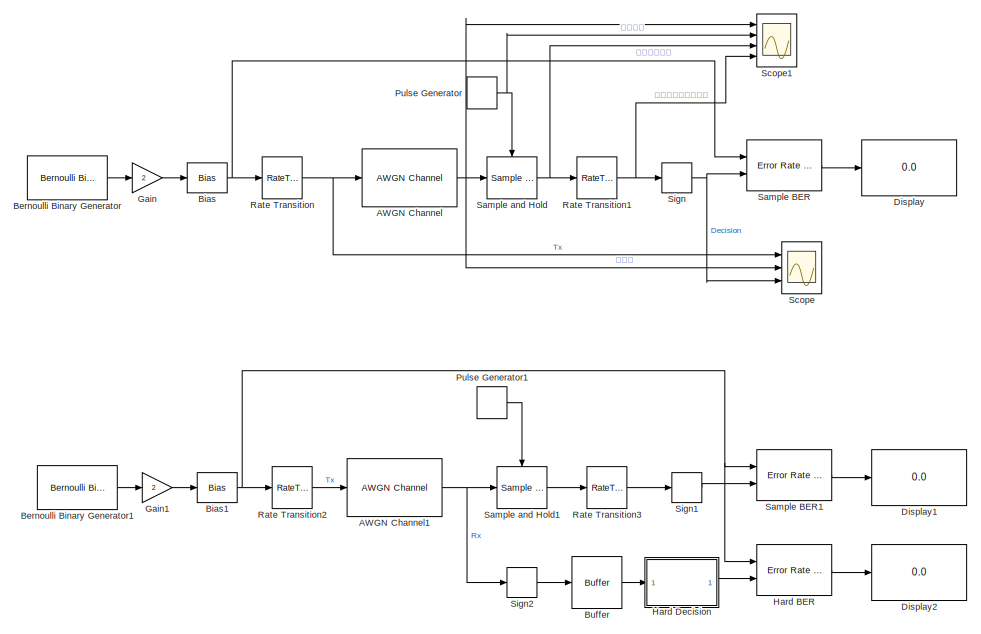
[diagram: root canvas - part 1/2, full width, top band]
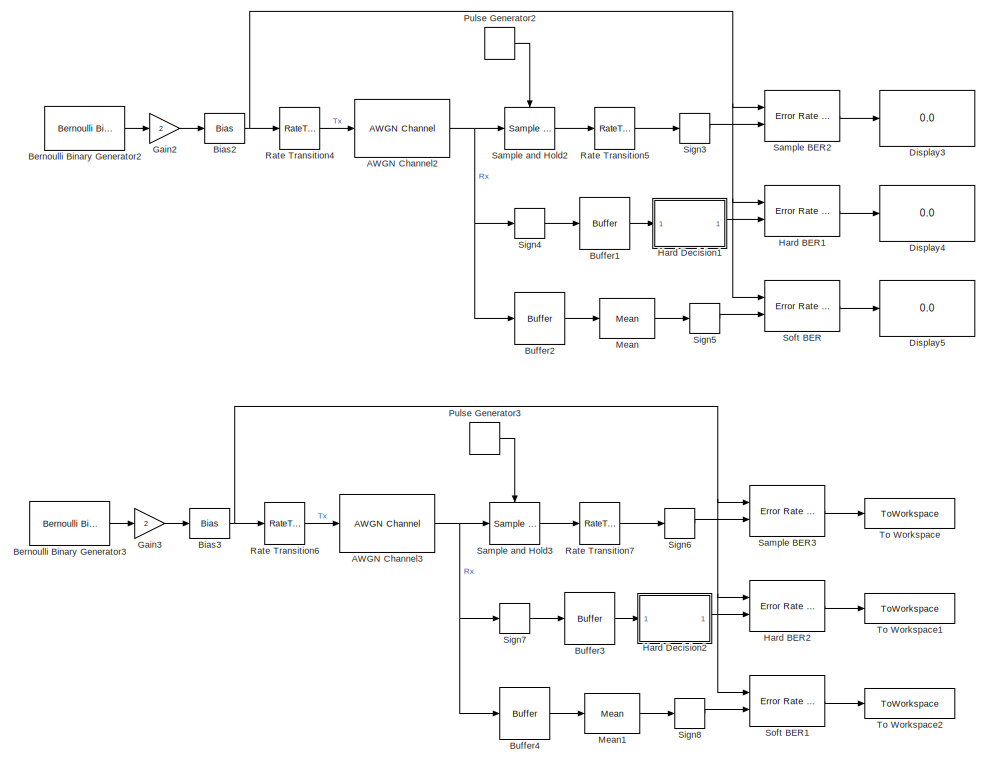
[diagram: root canvas - part 2/2, full width, bottom band]
MODEL slx_f33b62472613
KIND model
CONFIG AbsTol = auto
CONFIG EnableMultiTasking = off
CONFIG FixedStep = auto
CONFIG MaxStep = auto
CONFIG MinStep = auto
CONFIG RelTol = 1e-3
CONFIG SampleTimeConstraint = Unconstrained
CONFIG SolverName = VariableStepAuto
CONFIG StartTime = 0.0
CONFIG StopTime = 10000
BLOCK [Reference] AWGN Channel  REF=commchan3/AWGN
Channel
  Ports = [1, 1]
  SourceBlock = commchan3/AWGN\nChannel
  SourceProductBaseCode = CM
  SourceType = AWGN Channel
  UserDataPersistent = on
BLOCK [Reference] AWGN Channel1  REF=commchan3/AWGN
Channel
  Ports = [1, 1]
  SourceBlock = commchan3/AWGN\nChannel
  SourceProductBaseCode = CM
  SourceType = AWGN Channel
  UserDataPersistent = on
BLOCK [Reference] AWGN Channel2  REF=commchan3/AWGN
Channel
  Ports = [1, 1]
  SourceBlock = commchan3/AWGN\nChannel
  SourceProductBaseCode = CM
  SourceType = AWGN Channel
  UserDataPersistent = on
BLOCK [Reference] AWGN Channel3  REF=commchan3/AWGN
Channel
  Ports = [1, 1]
  SourceBlock = commchan3/AWGN\nChannel
  SourceProductBaseCode = CM
  SourceType = AWGN Channel
  UserDataPersistent = on
BLOCK [Reference] Bernoulli Binary Generator  REF=commrandsrc3/Bernoulli Binary
Generator
  Ports = [0, 1]
  SourceBlock = commrandsrc3/Bernoulli Binary\nGenerator
  SourceProductBaseCode = CM
  SourceType = Bernoulli Binary Generator
BLOCK [Reference] Bernoulli Binary Generator1  REF=commrandsrc3/Bernoulli Binary
Generator
  Ports = [0, 1]
  SourceBlock = commrandsrc3/Bernoulli Binary\nGenerator
  SourceProductBaseCode = CM
  SourceType = Bernoulli Binary Generator
BLOCK [Reference] Bernoulli Binary Generator2  REF=commrandsrc3/Bernoulli Binary
Generator
  Ports = [0, 1]
  SourceBlock = commrandsrc3/Bernoulli Binary\nGenerator
  SourceProductBaseCode = CM
  SourceType = Bernoulli Binary Generator
BLOCK [Reference] Bernoulli Binary Generator3  REF=commrandsrc3/Bernoulli Binary
Generator
  Ports = [0, 1]
  SourceBlock = commrandsrc3/Bernoulli Binary\nGenerator
  SourceProductBaseCode = CM
  SourceType = Bernoulli Binary Generator
BLOCK [Bias] Bias
  Bias = -1
  SaturateOnIntegerOverflow = off
BLOCK [Bias] Bias1
  Bias = -1
  SaturateOnIntegerOverflow = off
BLOCK [Bias] Bias2
  Bias = -1
  SaturateOnIntegerOverflow = off
BLOCK [Bias] Bias3
  Bias = -1
  SaturateOnIntegerOverflow = off
BLOCK [Buffer] Buffer
  N = Ns
  OutputFrames = off
BLOCK [Buffer] Buffer1
  N = Ns
  OutputFrames = off
BLOCK [Buffer] Buffer2
  N = Ns
  OutputFrames = off
BLOCK [Buffer] Buffer3
  N = Ns
  OutputFrames = off
BLOCK [Buffer] Buffer4
  N = Ns
  OutputFrames = off
BLOCK [Display] Display
  Decimation = 1
  Ports = [1]
BLOCK [Display] Display1
  Decimation = 1
  Ports = [1]
BLOCK [Display] Display2
  Decimation = 1
  Ports = [1]
BLOCK [Display] Display3
  Decimation = 1
  Ports = [1]
BLOCK [Display] Display4
  Decimation = 1
  Ports = [1]
BLOCK [Display] Display5
  Decimation = 1
  Ports = [1]
BLOCK [Gain] Gain
  Gain = 2
BLOCK [Gain] Gain1
  Gain = 2
BLOCK [Gain] Gain2
  Gain = 2
BLOCK [Gain] Gain3
  Gain = 2
BLOCK [Reference] Hard BER  REF=commsink2/Error Rate
Calculation
  Ports = [2, 1]
  SourceBlock = commsink2/Error Rate\nCalculation
  SourceProductBaseCode = CM
  SourceType = Error Rate Calculation
BLOCK [Reference] Hard BER1  REF=commsink2/Error Rate
Calculation
  Ports = [2, 1]
  SourceBlock = commsink2/Error Rate\nCalculation
  SourceProductBaseCode = CM
  SourceType = Error Rate Calculation
BLOCK [Reference] Hard BER2  REF=commsink2/Error Rate
Calculation
  Ports = [2, 1]
  SourceBlock = commsink2/Error Rate\nCalculation
  SourceProductBaseCode = CM
  SourceType = Error Rate Calculation
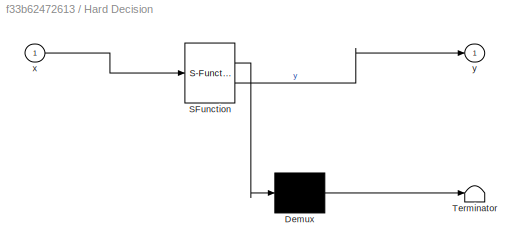
BLOCK [SubSystem] Hard Decision
  ErrorFcn = Stateflow.Translate.translate
  PermitHierarchicalResolution = ExplicitOnly
  Ports = [1, 1]
  RequestExecContextInheritance = off
  SFBlockType = MATLAB Function
  TreatAsAtomicUnit = on
BLOCK [Demux] Hard Decision/ Demux 
  Outputs = 1
  Ports = [1, 1]
BLOCK [S-Function] Hard Decision/ SFunction 
  EnableBusSupport = on
  FunctionName = sf_sfun
  PortCounts = [1 2]
  Ports = [1, 2]
  SFcnIsStateOwnerBlock = off
  SFunctionDeploymentMode = off
  Tag = Stateflow S-Function 2
BLOCK [Terminator] Hard Decision/ Terminator 
BLOCK [Inport] Hard Decision/x
BLOCK [Outport] Hard Decision/y
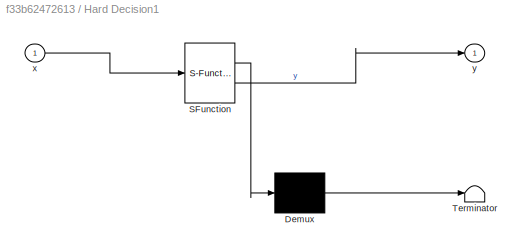
BLOCK [SubSystem] Hard Decision1
  ErrorFcn = Stateflow.Translate.translate
  PermitHierarchicalResolution = ExplicitOnly
  Ports = [1, 1]
  RequestExecContextInheritance = off
  SFBlockType = MATLAB Function
  TreatAsAtomicUnit = on
BLOCK [Demux] Hard Decision1/ Demux 
  Outputs = 1
  Ports = [1, 1]
BLOCK [S-Function] Hard Decision1/ SFunction 
  EnableBusSupport = on
  FunctionName = sf_sfun
  PortCounts = [1 2]
  Ports = [1, 2]
  SFcnIsStateOwnerBlock = off
  SFunctionDeploymentMode = off
  Tag = Stateflow S-Function 1
BLOCK [Terminator] Hard Decision1/ Terminator 
BLOCK [Inport] Hard Decision1/x
BLOCK [Outport] Hard Decision1/y
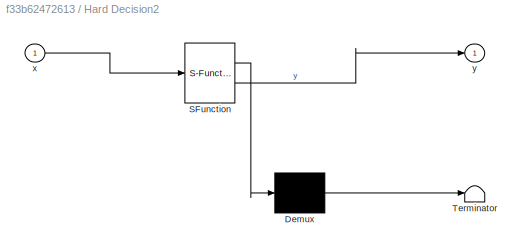
BLOCK [SubSystem] Hard Decision2
  ErrorFcn = Stateflow.Translate.translate
  PermitHierarchicalResolution = ExplicitOnly
  Ports = [1, 1]
  RequestExecContextInheritance = off
  SFBlockType = MATLAB Function
  TreatAsAtomicUnit = on
BLOCK [Demux] Hard Decision2/ Demux 
  Outputs = 1
  Ports = [1, 1]
BLOCK [S-Function] Hard Decision2/ SFunction 
  EnableBusSupport = on
  FunctionName = sf_sfun
  PortCounts = [1 2]
  Ports = [1, 2]
  SFcnIsStateOwnerBlock = off
  SFunctionDeploymentMode = off
  Tag = Stateflow S-Function 3
BLOCK [Terminator] Hard Decision2/ Terminator 
BLOCK [Inport] Hard Decision2/x
BLOCK [Outport] Hard Decision2/y
BLOCK [Reference] Mean  REF=dspstat3/Mean
  Ports = [1, 1]
  SourceBlock = dspstat3/Mean
  SourceProductBaseCode = DS
  SourceType = Mean
  UserDataPersistent = on
BLOCK [Reference] Mean1  REF=dspstat3/Mean
  Ports = [1, 1]
  SourceBlock = dspstat3/Mean
  SourceProductBaseCode = DS
  SourceType = Mean
  UserDataPersistent = on
BLOCK [DiscretePulseGenerator] Pulse Generator
  Period = Ns
  PhaseDelay = 5
  Ports = [0, 1]
  SampleTime = 1/Ns
BLOCK [DiscretePulseGenerator] Pulse Generator1
  Period = Ns
  Ports = [0, 1]
  SampleTime = 1/Ns
BLOCK [DiscretePulseGenerator] Pulse Generator2
  Period = Ns
  Ports = [0, 1]
  SampleTime = 1/Ns
BLOCK [DiscretePulseGenerator] Pulse Generator3
  Period = Ns
  Ports = [0, 1]
  SampleTime = 1/Ns
BLOCK [RateTransition] Rate Transition
  Integrity = off
  OutPortSampleTimeMultiple = 1/Ns
  OutPortSampleTimeOpt = Multiple of input port sample time
BLOCK [RateTransition] Rate Transition1
  OutPortSampleTimeMultiple = Ns
  OutPortSampleTimeOpt = Multiple of input port sample time
BLOCK [RateTransition] Rate Transition2
  Integrity = off
  OutPortSampleTimeMultiple = 1/Ns
  OutPortSampleTimeOpt = Multiple of input port sample time
BLOCK [RateTransition] Rate Transition3
  OutPortSampleTimeMultiple = Ns
  OutPortSampleTimeOpt = Multiple of input port sample time
BLOCK [RateTransition] Rate Transition4
  Integrity = off
  OutPortSampleTimeMultiple = 1/Ns
  OutPortSampleTimeOpt = Multiple of input port sample time
BLOCK [RateTransition] Rate Transition5
  OutPortSampleTimeMultiple = Ns
  OutPortSampleTimeOpt = Multiple of input port sample time
BLOCK [RateTransition] Rate Transition6
  Integrity = off
  OutPortSampleTimeMultiple = 1/Ns
  OutPortSampleTimeOpt = Multiple of input port sample time
BLOCK [RateTransition] Rate Transition7
  OutPortSampleTimeMultiple = Ns
  OutPortSampleTimeOpt = Multiple of input port sample time
BLOCK [Reference] Sample BER  REF=commsink2/Error Rate
Calculation
  Ports = [2, 1]
  SourceBlock = commsink2/Error Rate\nCalculation
  SourceProductBaseCode = CM
  SourceType = Error Rate Calculation
BLOCK [Reference] Sample BER1  REF=commsink2/Error Rate
Calculation
  Ports = [2, 1]
  SourceBlock = commsink2/Error Rate\nCalculation
  SourceProductBaseCode = CM
  SourceType = Error Rate Calculation
BLOCK [Reference] Sample BER2  REF=commsink2/Error Rate
Calculation
  Ports = [2, 1]
  SourceBlock = commsink2/Error Rate\nCalculation
  SourceProductBaseCode = CM
  SourceType = Error Rate Calculation
BLOCK [Reference] Sample BER3  REF=commsink2/Error Rate
Calculation
  Ports = [2, 1]
  SourceBlock = commsink2/Error Rate\nCalculation
  SourceProductBaseCode = CM
  SourceType = Error Rate Calculation
BLOCK [Reference] Sample and Hold  REF=dspsigops/Sample
and Hold
  Ports = [1, 1, 0, 1]
  SourceBlock = dspsigops/Sample\nand Hold
  SourceProductBaseCode = DS
  SourceType = Sample and Hold
BLOCK [Reference] Sample and Hold1  REF=dspsigops/Sample
and Hold
  Ports = [1, 1, 0, 1]
  SourceBlock = dspsigops/Sample\nand Hold
  SourceProductBaseCode = DS
  SourceType = Sample and Hold
BLOCK [Reference] Sample and Hold2  REF=dspsigops/Sample
and Hold
  Ports = [1, 1, 0, 1]
  SourceBlock = dspsigops/Sample\nand Hold
  SourceProductBaseCode = DS
  SourceType = Sample and Hold
BLOCK [Reference] Sample and Hold3  REF=dspsigops/Sample
and Hold
  Ports = [1, 1, 0, 1]
  SourceBlock = dspsigops/Sample\nand Hold
  SourceProductBaseCode = DS
  SourceType = Sample and Hold
BLOCK [Scope] Scope
  Floating = off
  NumInputPorts = 3
  Ports = [3]
  ScopeSpecificationString = Simulink.scopes.TimeScopeBlockCfg('CurrentConfiguration', extmgr.ConfigurationSet(extmgr.Configuration('Core','General UI',true),extmgr.Configuration('Core','Source UI',true),extmgr.Configuration('Sources','WiredSimulink',true),extmgr.Configuration('Visuals','Time Domain',true,'SerializedDisplays',{struct('MinYLimReal','-1.25','MaxYLimReal','1.25','YLabelReal','','MinYLimMag','0.00000','MaxYLimMag...<+2709ch>
BLOCK [Scope] Scope1
  Floating = off
  NumInputPorts = 4
  Ports = [4]
  ScopeSpecificationString = Simulink.scopes.TimeScopeBlockCfg('CurrentConfiguration', extmgr.ConfigurationSet(extmgr.Configuration('Core','General UI',true),extmgr.Configuration('Core','Source UI',true),extmgr.Configuration('Sources','WiredSimulink',true,'DataLoggingVariableName','ScopeData1'),extmgr.Configuration('Visuals','Time Domain',true,'SerializedDisplays',{struct('MinYLimReal','-4.20515','MaxYLimReal','3.84791','YLab...<+3484ch>
BLOCK [Signum] Sign
BLOCK [Signum] Sign1
BLOCK [Signum] Sign2
BLOCK [Signum] Sign3
BLOCK [Signum] Sign4
BLOCK [Signum] Sign5
BLOCK [Signum] Sign6
BLOCK [Signum] Sign7
BLOCK [Signum] Sign8
BLOCK [Reference] Soft BER  REF=commsink2/Error Rate
Calculation
  Ports = [2, 1]
  SourceBlock = commsink2/Error Rate\nCalculation
  SourceProductBaseCode = CM
  SourceType = Error Rate Calculation
BLOCK [Reference] Soft BER1  REF=commsink2/Error Rate
Calculation
  Ports = [2, 1]
  SourceBlock = commsink2/Error Rate\nCalculation
  SourceProductBaseCode = CM
  SourceType = Error Rate Calculation
BLOCK [ToWorkspace] To Workspace
  FixptAsFi = on
  MaxDataPoints = 1
  Ports = [1]
  SampleTime = -1
  VariableName = ber_sample
BLOCK [ToWorkspace] To Workspace1
  FixptAsFi = on
  MaxDataPoints = 1
  Ports = [1]
  SampleTime = -1
  VariableName = ber_hard
BLOCK [ToWorkspace] To Workspace2
  FixptAsFi = on
  MaxDataPoints = 1
  Ports = [1]
  SampleTime = -1
  VariableName = ber_soft
NET AWGN Channel1:1 -> Sample and Hold1:1, Sign2:1
NET AWGN Channel2:1 -> Buffer2:1, Sample and Hold2:1, Sign4:1
NET AWGN Channel3:1 -> Buffer4:1, Sample and Hold3:1, Sign7:1
NET AWGN Channel:1 -> Sample and Hold:1, Scope1:1, Scope:2
LINE Bernoulli Binary Generator1:1 -> Gain1:1
LINE Bernoulli Binary Generator2:1 -> Gain2:1
LINE Bernoulli Binary Generator3:1 -> Gain3:1
LINE Bernoulli Binary Generator:1 -> Gain:1
NET Bias1:1 -> Hard BER:1, Rate Transition2:1, Sample BER1:1
NET Bias2:1 -> Hard BER1:1, Rate Transition4:1, Sample BER2:1, Soft BER:1
NET Bias3:1 -> Hard BER2:1, Rate Transition6:1, Sample BER3:1, Soft BER1:1
NET Bias:1 -> Rate Transition:1, Sample BER:1
LINE Buffer1:1 -> Hard Decision1:1
LINE Buffer2:1 -> Mean:1
LINE Buffer3:1 -> Hard Decision2:1
LINE Buffer4:1 -> Mean1:1
LINE Buffer:1 -> Hard Decision:1
LINE Gain1:1 -> Bias1:1
LINE Gain2:1 -> Bias2:1
LINE Gain3:1 -> Bias3:1
LINE Gain:1 -> Bias:1
LINE Hard BER1:1 -> Display4:1
LINE Hard BER2:1 -> To Workspace1:1
LINE Hard BER:1 -> Display2:1
LINE Hard Decision1:1 -> Hard BER1:2
LINE Hard Decision2:1 -> Hard BER2:2
LINE Hard Decision:1 -> Hard BER:2
LINE Mean1:1 -> Sign8:1
LINE Mean:1 -> Sign5:1
LINE Pulse Generator1:1 -> Sample and Hold1:trigger
LINE Pulse Generator2:1 -> Sample and Hold2:trigger
LINE Pulse Generator3:1 -> Sample and Hold3:trigger
NET Pulse Generator:1 -> Sample and Hold:trigger, Scope1:2
NET Rate Transition1:1 -> Scope1:4, Sign:1
LINE Rate Transition2:1 -> AWGN Channel1:1
LINE Rate Transition3:1 -> Sign1:1
LINE Rate Transition4:1 -> AWGN Channel2:1
LINE Rate Transition5:1 -> Sign3:1
LINE Rate Transition6:1 -> AWGN Channel3:1
LINE Rate Transition7:1 -> Sign6:1
NET Rate Transition:1 -> AWGN Channel:1, Scope:1
LINE Sample BER1:1 -> Display1:1
LINE Sample BER2:1 -> Display3:1
LINE Sample BER3:1 -> To Workspace:1
LINE Sample BER:1 -> Display:1
LINE Sample and Hold1:1 -> Rate Transition3:1
LINE Sample and Hold2:1 -> Rate Transition5:1
LINE Sample and Hold3:1 -> Rate Transition7:1
NET Sample and Hold:1 -> Rate Transition1:1, Scope1:3
LINE Sign1:1 -> Sample BER1:2
LINE Sign2:1 -> Buffer:1
LINE Sign3:1 -> Sample BER2:2
LINE Sign4:1 -> Buffer1:1
LINE Sign5:1 -> Soft BER:2
LINE Sign6:1 -> Sample BER3:2
LINE Sign7:1 -> Buffer3:1
LINE Sign8:1 -> Soft BER1:2
NET Sign:1 -> Sample BER:2, Scope:3
LINE Soft BER1:1 -> To Workspace2:1
LINE Soft BER:1 -> Display5:1
note: NET lines group one-source signal fan-out (src -> all destinations, sorted); 1:1 wires keep LINE
CHART Hard Decision states=1 transitions=1
  STATE_LABEL 'eML_blk_kernel()'
  STATE_LABEL 'SCRIPT:\nfunction y = hard(x)\nn0 = length(find(x==-1));\nn1 = length(find(x==1));\nif (n0>=n1)\n    y = -1;\nelse\n    y = 1;\nend'
CHART Hard Decision2 states=1 transitions=1
  STATE_LABEL 'eML_blk_kernel()'
  STATE_LABEL 'SCRIPT:\nfunction y = hard(x)\nn0 = length(find(x==-1));\nn1 = length(find(x==1));\nif (n0>=n1)\n    y = -1;\nelse\n    y = 1;\nend'
CHART Hard Decision1 states=1 transitions=1
  STATE_LABEL 'eML_blk_kernel()'
  STATE_LABEL 'SCRIPT:\nfunction y = hard(x)\nn0 = length(find(x==-1));\nn1 = length(find(x==1));\nif (n0>=n1)\n    y = -1;\nelse\n    y = 1;\nend'
CHART  states=0 transitions=0
CHART  states=0 transitions=0
CHART  states=0 transitions=0
